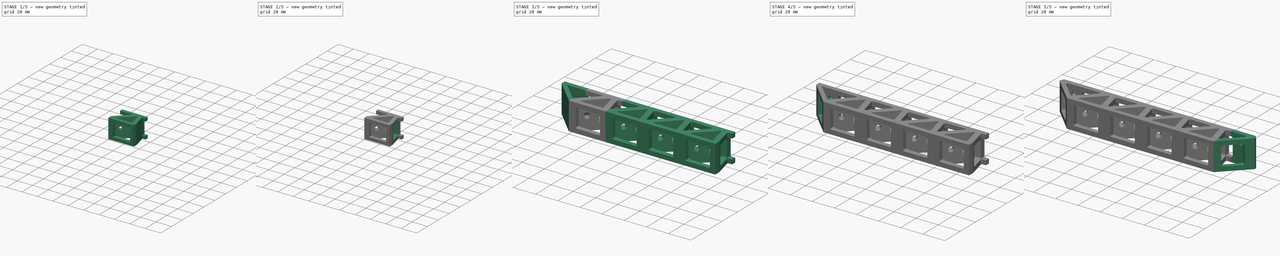
[diagram: build sequence overview — one tinted view per stage of 5, left to right]
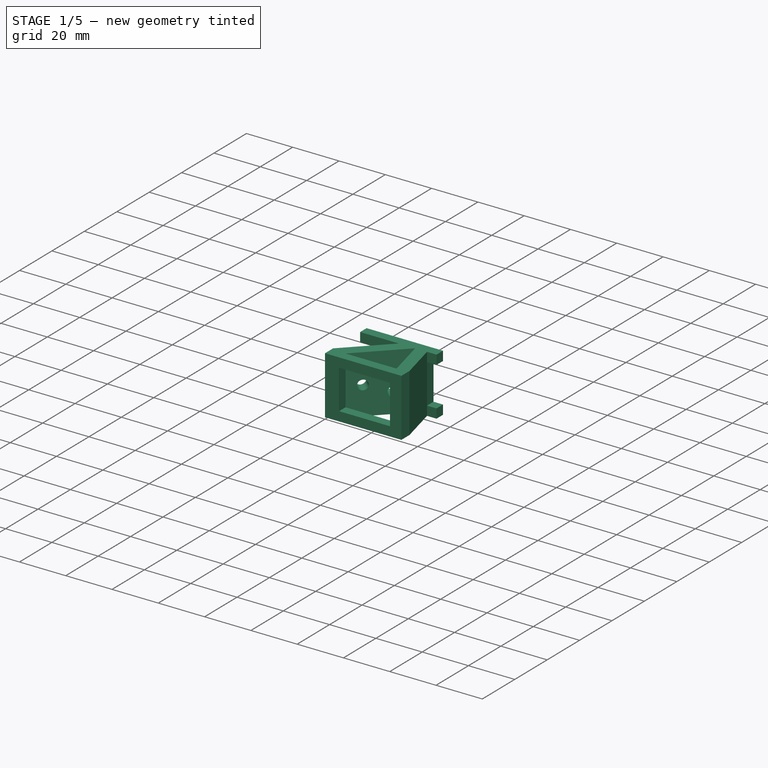
[diagram: stage 1 of 5 — iso view after this stage's code; geometry added in this stage tinted green]
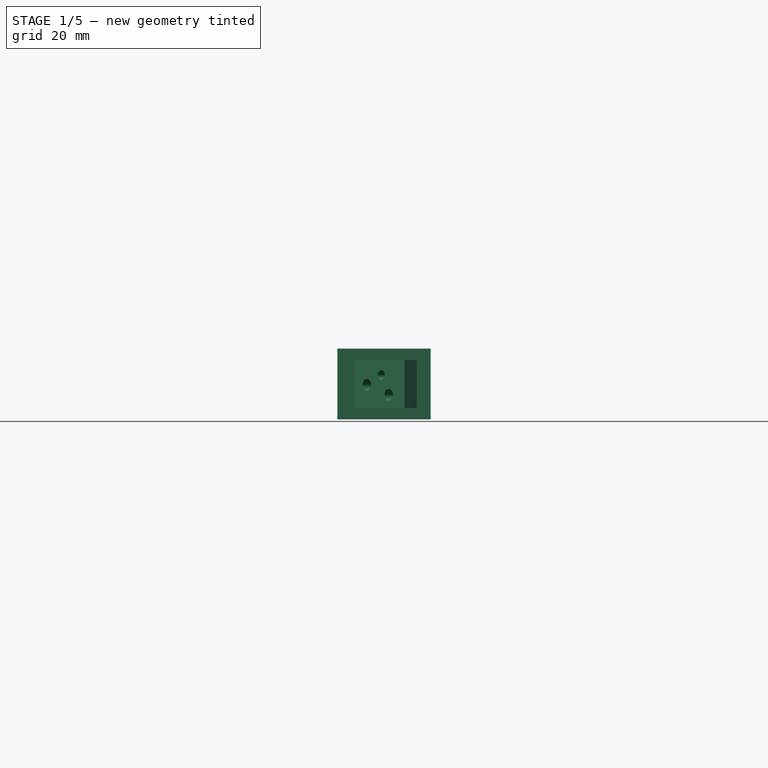
[diagram: stage 1 of 5 — front view after this stage's code; geometry added in this stage tinted green]
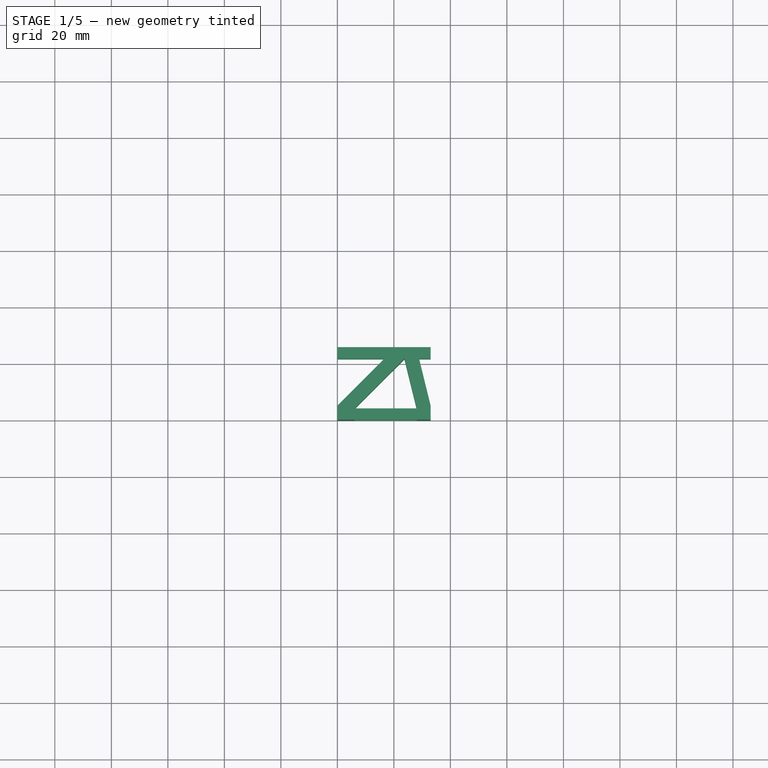
[diagram: stage 1 of 5 — top view after this stage's code; geometry added in this stage tinted green]
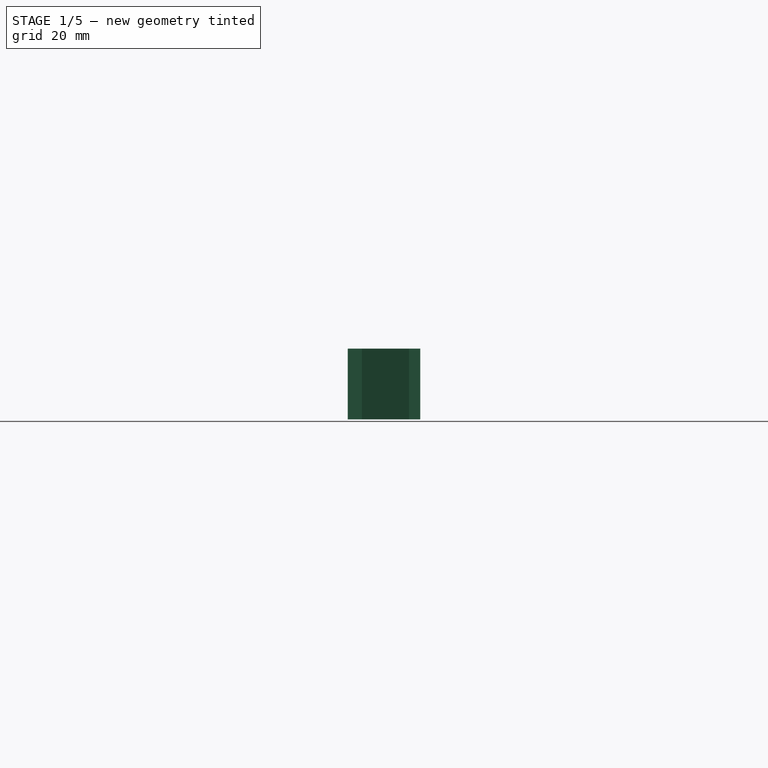
[diagram: stage 1 of 5 — right view after this stage's code; geometry added in this stage tinted green]
FCSTD DOCUMENT  (FreeCAD 0.19R)
Label: hori_stem
License: All rights reserved
LicenseURL: http://en.wikipedia.org/wiki/All_rights_reserved
objects: Sketcher::SketchObject×12, PartDesign::Pocket×6, PartDesign::Pad×5, PartDesign::Fillet×5, PartDesign::Hole×2, PartDesign::Chamfer×2, PartDesign::LinearPattern×2, PartDesign::Plane×1, PartDesign::Mirrored×1, PartDesign::Body×1
note: 57 computed .brp shape members not serialized (recipe doc carries the construction recipe); baked Part::Feature solids carry a one-line shape summary decoded from their .brp

FEATURE [Sketcher::SketchObject] Sketch  label="connector_base_sk"
  FullyConstrained = true
  MapMode = 5
  Support = -> [XY_Plane]
  sketch-geometry (13):
    g0: LineSegment StartX=0 StartY=5 StartZ=0 EndX=16.6777 EndY=21.6777 EndZ=0
    g1: LineSegment StartX=28.8978 StartY=21.6777 StartZ=0 EndX=33 EndY=5 EndZ=0
    g2: LineSegment StartX=6.07107 StartY=4 StartZ=0 EndX=23.7487 EndY=21.6777 EndZ=0
    g3: LineSegment StartX=23.7487 StartY=21.6777 StartZ=0 EndX=28.0969 EndY=4 EndZ=0
    g4: LineSegment StartX=33 StartY=0 StartZ=0 EndX=33 EndY=5 EndZ=0
    g5: LineSegment StartX=0 StartY=5 StartZ=0 EndX=0 EndY=0 EndZ=0
    g6: LineSegment StartX=6.07107 StartY=4 StartZ=0 EndX=28.0969 EndY=4 EndZ=0
    g7: LineSegment StartX=33 StartY=0 StartZ=0 EndX=0 EndY=0 EndZ=0
    g8: LineSegment StartX=0 StartY=25.6777 StartZ=0 EndX=33 EndY=25.6777 EndZ=0
    g9: LineSegment StartX=33 StartY=25.6777 StartZ=0 EndX=33 EndY=21.6777 EndZ=0
    g10: LineSegment StartX=33 StartY=21.6777 StartZ=0 EndX=28.8978 EndY=21.6777 EndZ=0
    g11: LineSegment StartX=0 StartY=21.6777 StartZ=0 EndX=0 EndY=25.6777 EndZ=0
    g12: LineSegment StartX=16.6777 StartY=21.6777 StartZ=0 EndX=0 EndY=21.6777 EndZ=0
  constraints (38):
    c: PointOnObject(g5,g-2)
    c: Coincident(g3,g2)
    c: Coincident(g5,g0)
    c: Vertical(g4)
    c: Parallel(g2,g0)
    c: Parallel(g3,g1)
    c: Vertical(g5)
    c: PointOnObject(g4,g-1)
    c: PointOnObject(g5,g-1)
    c: Coincident(g4,g1)
    c: Angle(g-1,g2) = 0.785398
    c: DistanceX(g5,g4) = 33
    c: Horizontal(g1,g0)
    c: Horizontal(g6)
    c: Coincident(g7,g4)
    c: Coincident(g7,g5)
    c: Distance(g6,g7) = 4
    c: Coincident(g3,g6)
    c: Coincident(g2,g6)
    c: Distance(g2,g0) = 5
    c: Distance(g3,g1) = 5
    c: Distance(g5) = 5
    c: Coincident(g8,g9)
    c: Coincident(g9,g10)
    c: Coincident(g12,g11)
    c: Coincident(g11,g8)
    c: Horizontal(g8)
    c: Horizontal(g10)
    c: Vertical(g9)
    c: Vertical(g11)
    c: PointOnObject(g8,g-2)
    c: Distance(g11) = 4
    c: Vertical(g9,g1)
    c: Coincident(g10,g1)
    c: Coincident(g12,g0)
    c: Tangent(g10,g12)
    c: Distance(g2) = 25
    c: Horizontal(g2,g11)
FEATURE [PartDesign::Pad] Pad  label="connector_base"
  Direction = (1,1,1)
  Length = 25
  Length2 = 17
  Midplane = true
  Profile = -> Sketch
  Type = 0
FEATURE [Sketcher::SketchObject] Sketch007  label="back_stiffener_sk"
  ExternalGeometry = -> [Pad]
  FullyConstrained = true
  MapMode = 5
  Placement = pos=(0,4,0) rot=(0,0.707107,0.707107;3.14159rad)
  Support = -> [Pad]
  sketch-geometry (4):
    g0: LineSegment StartX=-6.07107 StartY=8.5 StartZ=0 EndX=-28.0969 EndY=8.5 EndZ=0
    g1: LineSegment StartX=-28.0969 StartY=8.5 StartZ=0 EndX=-28.0969 EndY=-8.5 EndZ=0
    g2: LineSegment StartX=-28.0969 StartY=-8.5 StartZ=0 EndX=-6.07107 EndY=-8.5 EndZ=0
    g3: LineSegment StartX=-6.07107 StartY=-8.5 StartZ=0 EndX=-6.07107 EndY=8.5 EndZ=0
  constraints (12):
    c: Coincident(g0,g1)
    c: Coincident(g1,g2)
    c: Coincident(g2,g3)
    c: Coincident(g3,g0)
    c: Horizontal(g0)
    c: Horizontal(g2)
    c: Vertical(g1)
    c: Vertical(g3)
    c: PointOnObject(g0,g-4)
    c: PointOnObject(g1,g-3)
    c: Distance(g-3,g2) = 4
    c: Distance(g-4,g0) = 4
FEATURE [PartDesign::Pocket] Pocket002  label="back_stiffener"
  BaseFeature = -> Pad
  Length = 5
  Length2 = 100
  Profile = -> Sketch007
  Type = 2
FEATURE [Sketcher::SketchObject] Sketch008  label="front_stiffener_sk"
  ExternalGeometry = -> [Pocket002]
  FullyConstrained = true
  MapMode = 5
  Placement = pos=(0,21.6777,0) rot=(1,0,0;1.5708rad)
  Support = -> [Pocket002]
  sketch-geometry (8):
    g0: LineSegment StartX=0 StartY=8.5 StartZ=0 EndX=16.6777 EndY=8.5 EndZ=0
    g1: LineSegment StartX=16.6777 StartY=8.5 StartZ=0 EndX=16.6777 EndY=-8.5 EndZ=0
    g2: LineSegment StartX=16.6777 StartY=-8.5 StartZ=0 EndX=0 EndY=-8.5 EndZ=0
    g3: LineSegment StartX=0 StartY=-8.5 StartZ=0 EndX=0 EndY=8.5 EndZ=0
    g4: LineSegment StartX=28.8978 StartY=-8.5 StartZ=0 EndX=33 EndY=-8.5 EndZ=0
    g5: LineSegment StartX=33 StartY=-8.5 StartZ=0 EndX=33 EndY=8.5 EndZ=0
    g6: LineSegment StartX=33 StartY=8.5 StartZ=0 EndX=28.8978 EndY=8.5 EndZ=0
    g7: LineSegment StartX=28.8978 StartY=8.5 StartZ=0 EndX=28.8978 EndY=-8.5 EndZ=0
  constraints (24):
    c: Coincident(g0,g1)
    c: Coincident(g1,g2)
    c: Coincident(g2,g3)
    c: Coincident(g3,g0)
    c: Horizontal(g0)
    c: Horizontal(g2)
    c: Vertical(g1)
    c: Vertical(g3)
    c: PointOnObject(g0,g-6)
    c: PointOnObject(g1,g-5)
    c: Coincident(g4,g5)
    c: Coincident(g5,g6)
    c: Coincident(g6,g7)
    c: Coincident(g7,g4)
    c: Horizontal(g4)
    c: Horizontal(g6)
    c: Vertical(g5)
    c: Vertical(g7)
    c: PointOnObject(g4,g-3)
    c: PointOnObject(g5,g-4)
    c: Distance(g-4,g6) = 4
    c: Distance(g-6,g2) = 4
    c: Horizontal(g1,g4)
    c: Horizontal(g0,g6)
FEATURE [PartDesign::Pocket] Pocket003  label="front_stiffener"
  BaseFeature = -> Pocket002
  Length = 5
  Length2 = 100
  Profile = -> Sketch008
  Type = 2
FEATURE [Sketcher::SketchObject] Sketch001  label="M3_hole_sk"
  ExternalGeometry = -> [Pad]
  FullyConstrained = true
  MapMode = 5
  Placement = pos=(-2.5,2.5,0) rot=(-0.281085,0.678598,0.678598;3.68962rad)
  Support = -> [Pocket003]
  sketch-geometry (1):
    g0: Circle CenterX=-20.5355 CenterY=3.2 CenterZ=0 NormalX=0 NormalY=0 NormalZ=1 AngleXU=0 Radius=1
  constraints (3):
    c: Radius(g0) = 1
    c: Distance(g0,g-3) = 17
    c: Distance(g0,g-4) = 9.3
FEATURE [PartDesign::Hole] Hole  label="M3_hole"
  BaseFeature = -> Pocket003
  Depth = 7
  DepthType = 0
  Diameter = 3.4
  DrillForDepth = false
  DrillPoint = 1
  DrillPointAngle = 118
  HoleCutCountersinkAngle = 90
  HoleCutCustomValues = false
  HoleCutDepth = 0
  HoleCutDiameter = 6.1
  HoleCutType = 0
  ModelActualThread = false
  Profile = -> Sketch001
  Tapered = false
  TaperedAngle = 90
  ThreadAngle = 0
  ThreadClass = 0
  ThreadCutOffInner = 0
  ThreadCutOffOuter = 0
  ThreadDirection = 0
  ThreadFit = 0
  ThreadPitch = 0
  ThreadSize = 9
  ThreadType = 1
  Threaded = false
FEATURE [Sketcher::SketchObject] Sketch002  label="dual_dowel_hole_sk"
  ExternalGeometry = -> [Hole]
  FullyConstrained = true
  MapMode = 5
  Placement = pos=(-2.5,2.5,0) rot=(-0.281085,0.678598,0.678598;3.68962rad)
  Support = -> [Hole]
  sketch-geometry (2):
    g0: Circle CenterX=-24.2355 CenterY=-3.8 CenterZ=0 NormalX=0 NormalY=0 NormalZ=1 AngleXU=0 Radius=2.1
    g1: Circle CenterX=-13.3355 CenterY=-0.3 CenterZ=0 NormalX=0 NormalY=0 NormalZ=1 AngleXU=0 Radius=2.1
  constraints (6):
    c: Radius(g0) = 2.1
    c: Equal(g1,g0)
    c: DistanceY(g0,g-3) = 7
    c: DistanceX(g0,g-3) = 3.7
    c: DistanceY(g1,g-3) = 3.5
    c: DistanceX(g-3,g1) = 7.2
FEATURE [PartDesign::Pocket] Pocket  label="dual_dowel_hole"
  BaseFeature = -> Hole
  Length = 7
  Length2 = 100
  Profile = -> Sketch002
  Type = 2
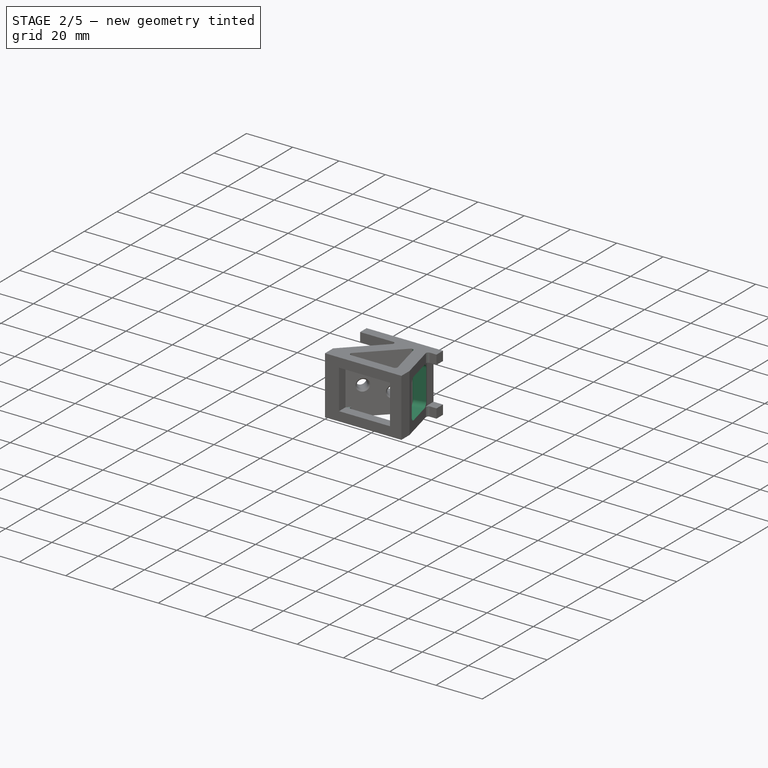
[diagram: stage 2 of 5 — iso view after this stage's code; geometry added in this stage tinted green]
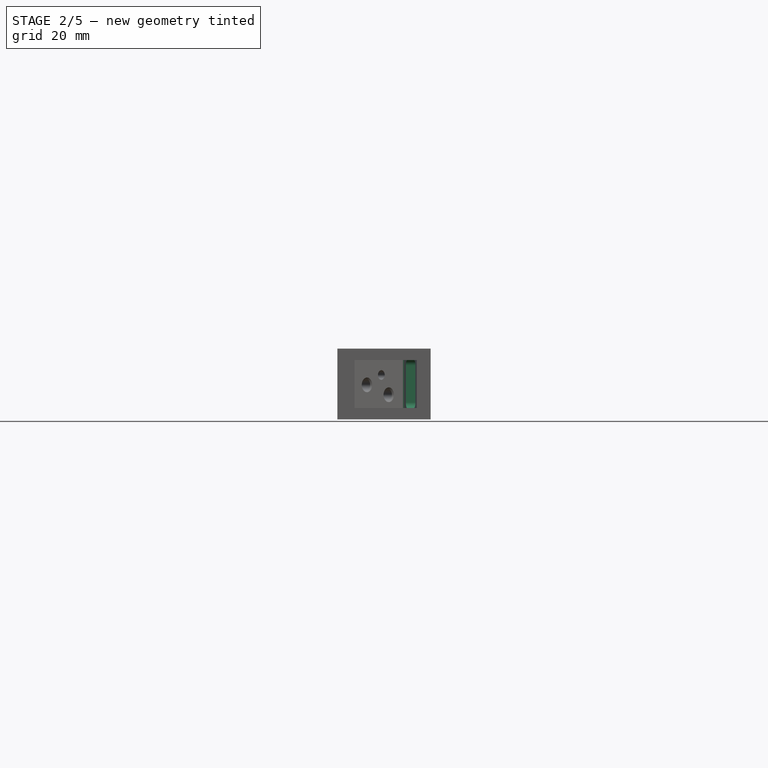
[diagram: stage 2 of 5 — front view after this stage's code; geometry added in this stage tinted green]
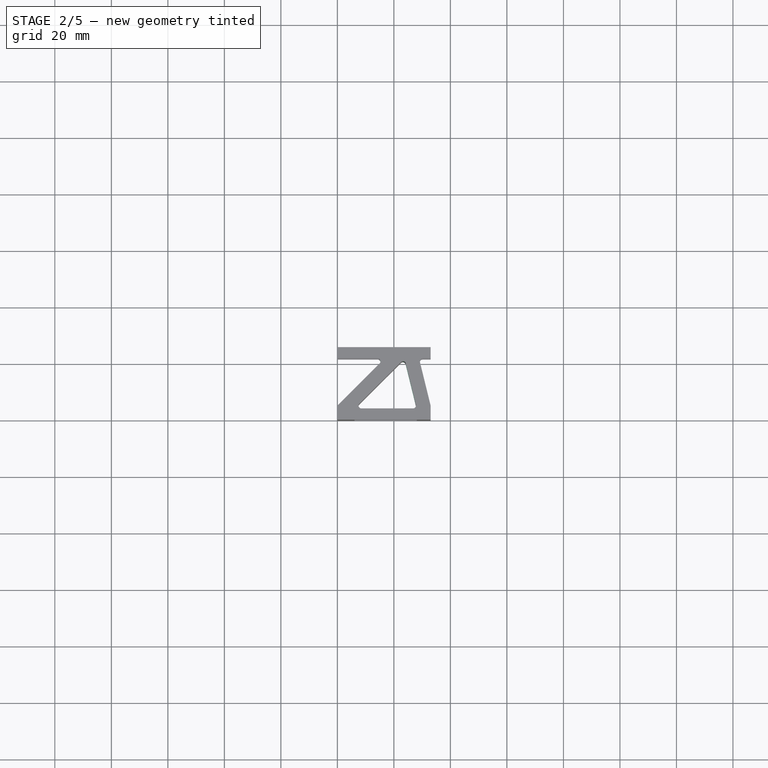
[diagram: stage 2 of 5 — top view after this stage's code; geometry added in this stage tinted green]
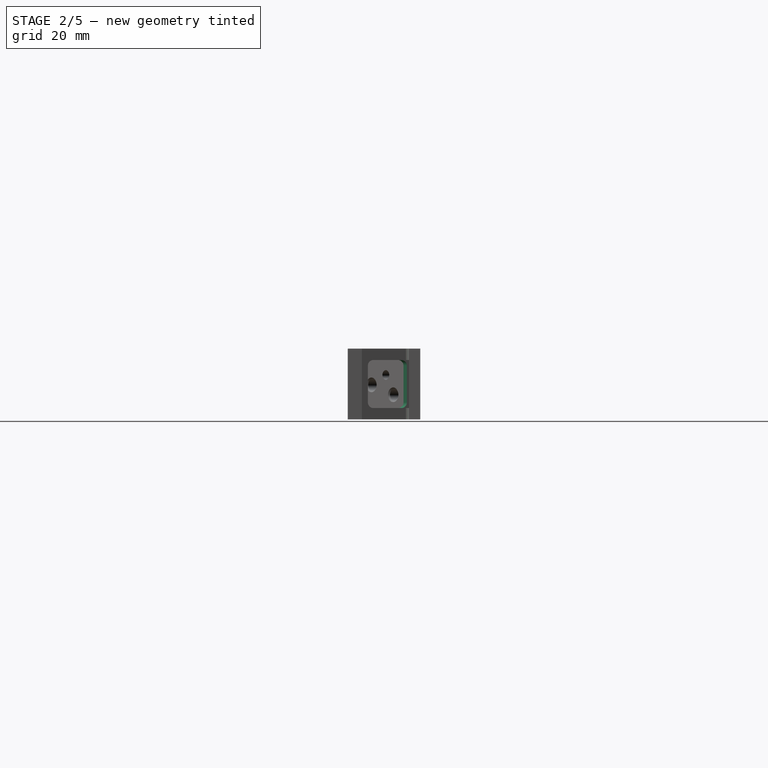
[diagram: stage 2 of 5 — right view after this stage's code; geometry added in this stage tinted green]
FEATURE [PartDesign::Chamfer] Chamfer  label="dowel_chamfer"
  Angle = 45
  Base = -> Pocket [Edge73,Edge75]
  BaseFeature = -> Pocket
  ChamferType = 0
  FlipDirection = false
  Size = 0.5
  Size2 = 1
  SupportTransform = false
FEATURE [Sketcher::SketchObject] Sketch005  label="finger_hole_sk"
  ExternalGeometry = -> [Pocket003]
  FullyConstrained = true
  MapMode = 5
  Placement = pos=(27.4218,6.74497,0) rot=(0.66983,-0.525037,-0.525037;1.96121rad)
  Support = -> [Pocket003]
  sketch-geometry (4):
    g0: LineSegment StartX=-13.3778 StartY=8.5 StartZ=0 EndX=0.826785 EndY=8.5 EndZ=0
    g1: LineSegment StartX=0.826785 StartY=8.5 StartZ=0 EndX=0.826785 EndY=-8.5 EndZ=0
    g2: LineSegment StartX=0.826785 StartY=-8.5 StartZ=0 EndX=-13.3778 EndY=-8.5 EndZ=0
    g3: LineSegment StartX=-13.3778 StartY=-8.5 StartZ=0 EndX=-13.3778 EndY=8.5 EndZ=0
  constraints (12):
    c: Coincident(g0,g1)
    c: Coincident(g1,g2)
    c: Coincident(g2,g3)
    c: Coincident(g3,g0)
    c: Horizontal(g0)
    c: Horizontal(g2)
    c: Vertical(g1)
    c: Vertical(g3)
    c: DistanceY(g0,g-3) = 4
    c: DistanceX(g-3,g0) = 2
    c: DistanceY(g-4,g1) = 4
    c: DistanceX(g1,g-4) = 2
FEATURE [PartDesign::Pocket] Pocket001  label="finger_hole"
  BaseFeature = -> Chamfer
  Length = 0
  Length2 = 100
  Profile = -> Sketch005
  Type = 2
FEATURE [PartDesign::Fillet] Fillet  label="finger_hole_fillet"
  Base = -> Pocket001 [Edge93,Edge92,Edge90,Edge91]
  BaseFeature = -> Pocket001
  Radius = 2
  SupportTransform = false
FEATURE [PartDesign::Fillet] Fillet001  label="frame_fillet"
  Base = -> Fillet [Edge85,Edge84,Edge66,Edge69,Edge32,Edge35,Edge9,Edge13,Edge12]
  BaseFeature = -> Fillet
  Radius = 1
  SupportTransform = false
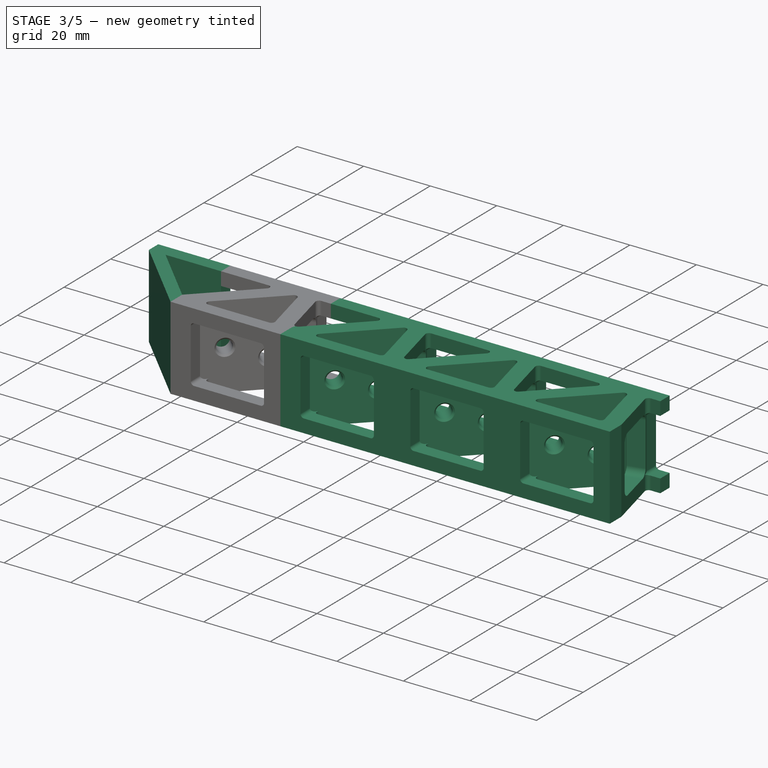
[diagram: stage 3 of 5 — iso view after this stage's code; geometry added in this stage tinted green]
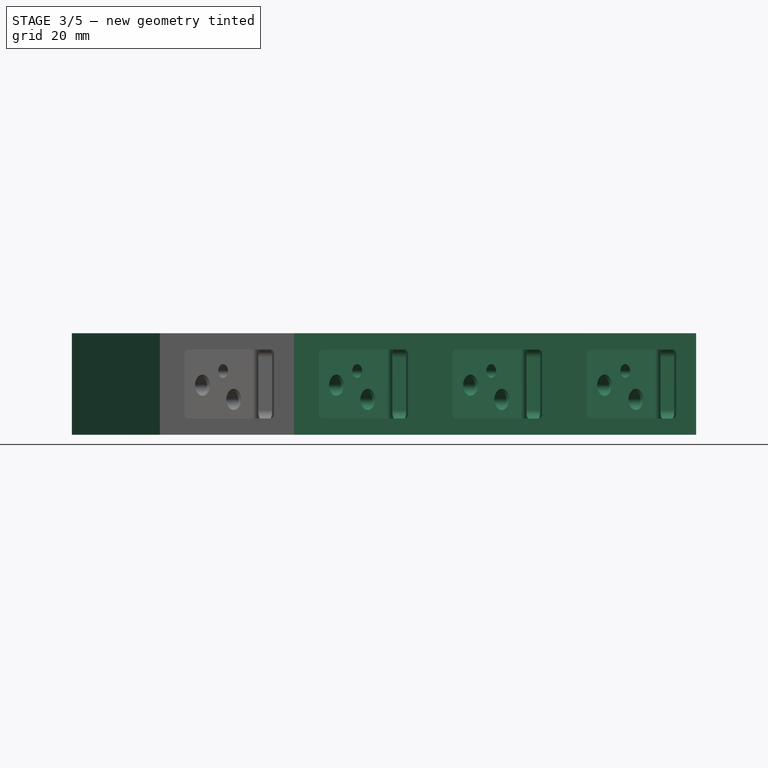
[diagram: stage 3 of 5 — front view after this stage's code; geometry added in this stage tinted green]
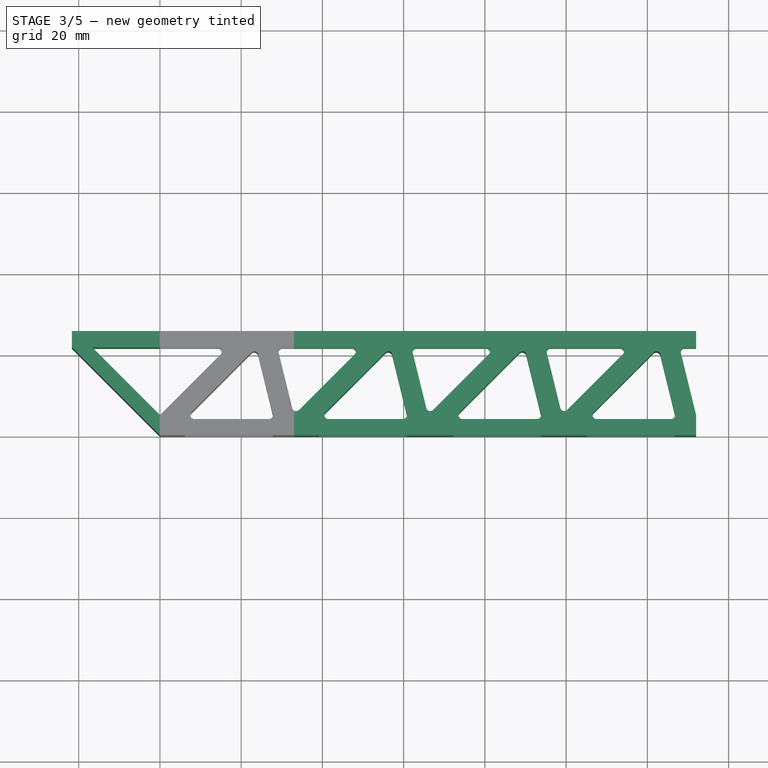
[diagram: stage 3 of 5 — top view after this stage's code; geometry added in this stage tinted green]
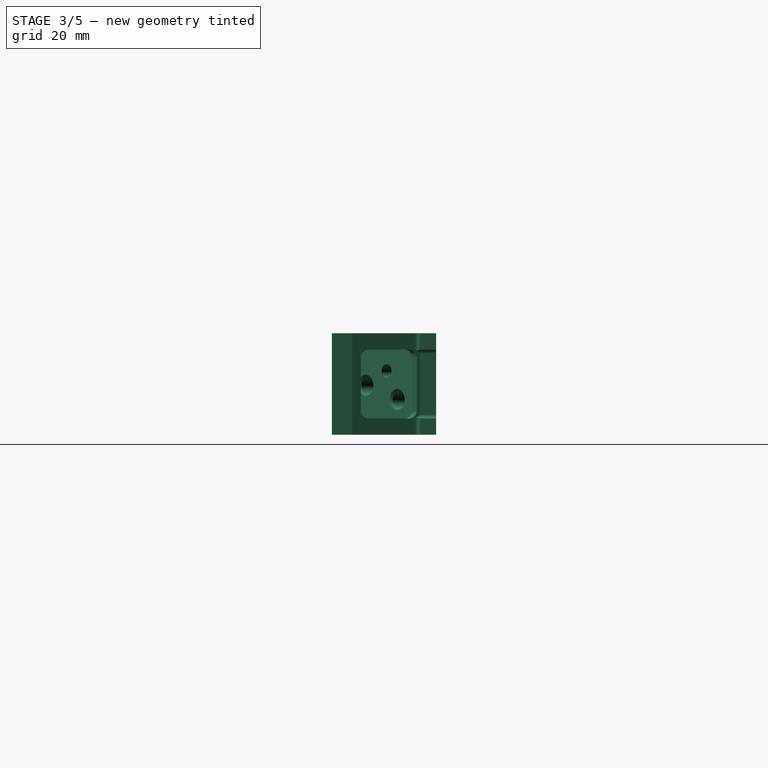
[diagram: stage 3 of 5 — right view after this stage's code; geometry added in this stage tinted green]
FEATURE [PartDesign::Fillet] Fillet002  label="frame_fillet2"
  Base = -> Fillet001 [Edge62,Edge57,Edge58,Edge67,Edge148,Edge149,Edge141,Edge142]
  BaseFeature = -> Fillet001
  Radius = 1
  SupportTransform = false
FEATURE [PartDesign::LinearPattern] LinearPattern  label="quad_connector"
  BaseFeature = -> Fillet002
  Direction = -> X_Axis
  Length = 99
  Occurrences = 4
  Originals = -> [Pad,Pocket002,Pocket003,Hole,Pocket,Chamfer,Pocket001,Fillet,Fillet001,Fillet002]
FEATURE [Sketcher::SketchObject] Sketch009  label="additive_fillet_sk"
  ExternalGeometry = -> [LinearPattern]
  FullyConstrained = true
  MapMode = 5
  Placement = pos=(0,0,12.5) rot=(0,0,1;0rad)
  Support = -> [LinearPattern]
  sketch-geometry (3):
    g0: LineSegment StartX=33 StartY=5 StartZ=0 EndX=34.2544 EndY=6.25443 EndZ=0
    g1: LineSegment StartX=33 StartY=5 StartZ=0 EndX=32.5763 EndY=6.72269 EndZ=0
    g2: ArcOfCircle CenterX=33.5473 CenterY=6.96154 CenterZ=0 NormalX=0 NormalY=0 NormalZ=1 AngleXU=0 Radius=1 StartAngle=3.38278 EndAngle=5.49779
  constraints (7):
    c: Coincident(g0,g-5)
    c: PointOnObject(g0,g-5)
    c: Coincident(g1,g0)
    c: PointOnObject(g1,g-4)
    c: Tangent(g2,g1) = 1.5708
    c: Tangent(g2,g0) = -1.5708
    c: Equal(g2,g-3)
FEATURE [PartDesign::Pad] Pad001  label="additive_fillet"
  BaseFeature = -> LinearPattern
  Direction = (1,1,1)
  Length = 10
  Length2 = 100
  Profile = -> Sketch009
  Reversed = true
  Type = 3
  UpToFace = -> LinearPattern [Face4]
FEATURE [PartDesign::LinearPattern] LinearPattern001  label="triple_additive_fillet"
  BaseFeature = -> Pad001
  Direction = -> X_Axis
  Length = 66
  Occurrences = 3
  Originals = -> [Pad001]
FEATURE [Sketcher::SketchObject] Sketch010  label="rack_connectorsk"
  ExternalGeometry = -> [LinearPattern001]
  FullyConstrained = true
  MapMode = 5
  Placement = pos=(0,0,12.5) rot=(0,0,1;0rad)
  Support = -> [LinearPattern001]
  sketch-geometry (7):
    g0: LineSegment StartX=0 StartY=25.6777 StartZ=0 EndX=-21.6777 EndY=25.6777 EndZ=0
    g1: LineSegment StartX=-21.6777 StartY=25.6777 StartZ=0 EndX=-21.6777 EndY=21.6777 EndZ=0
    g2: LineSegment StartX=-21.6777 StartY=21.6777 StartZ=0 EndX=0 EndY=0 EndZ=0
    g3: LineSegment StartX=0 StartY=0 StartZ=0 EndX=0 EndY=5 EndZ=0
    g4: LineSegment StartX=0 StartY=5 StartZ=0 EndX=-16.6777 EndY=21.6777 EndZ=0
    g5: LineSegment StartX=-16.6777 StartY=21.6777 StartZ=0 EndX=0 EndY=21.6777 EndZ=0
    g6: LineSegment StartX=0 StartY=25.6777 StartZ=0 EndX=0 EndY=21.6777 EndZ=0
  constraints (17):
    c: Coincident(g-3,g0)
    c: Horizontal(g0)
    c: Coincident(g0,g1)
    c: Vertical(g1)
    c: Coincident(g1,g2)
    c: Coincident(g2,g-1)
    c: Coincident(g2,g3)
    c: Coincident(g3,g-4)
    c: Coincident(g3,g4)
    c: Coincident(g4,g5)
    c: Coincident(g5,g-3)
    c: Horizontal(g5)
    c: Parallel(g4,g2)
    c: Horizontal(g1,g4)
    c: Angle(g4,g5) = 0.785398
    c: Coincident(g6,g0)
    c: Coincident(g6,g5)
FEATURE [PartDesign::Pad] Pad002  label="rack_connector"
  BaseFeature = -> LinearPattern001
  Direction = (1,1,1)
  Length = 10
  Length2 = 100
  Profile = -> Sketch010
  Reversed = true
  Type = 3
  UpToFace = -> LinearPattern001 [Face4]
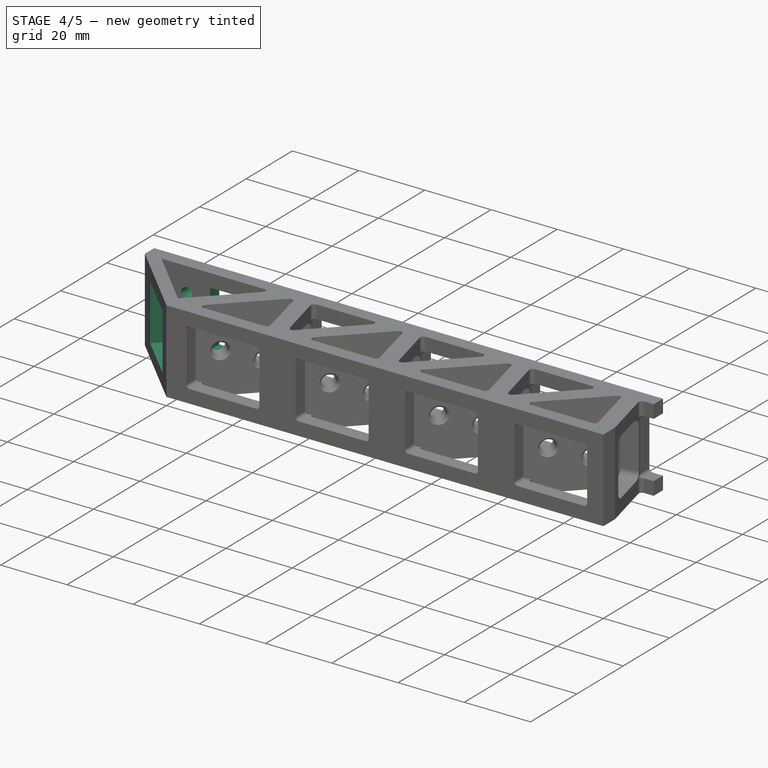
[diagram: stage 4 of 5 — iso view after this stage's code; geometry added in this stage tinted green]
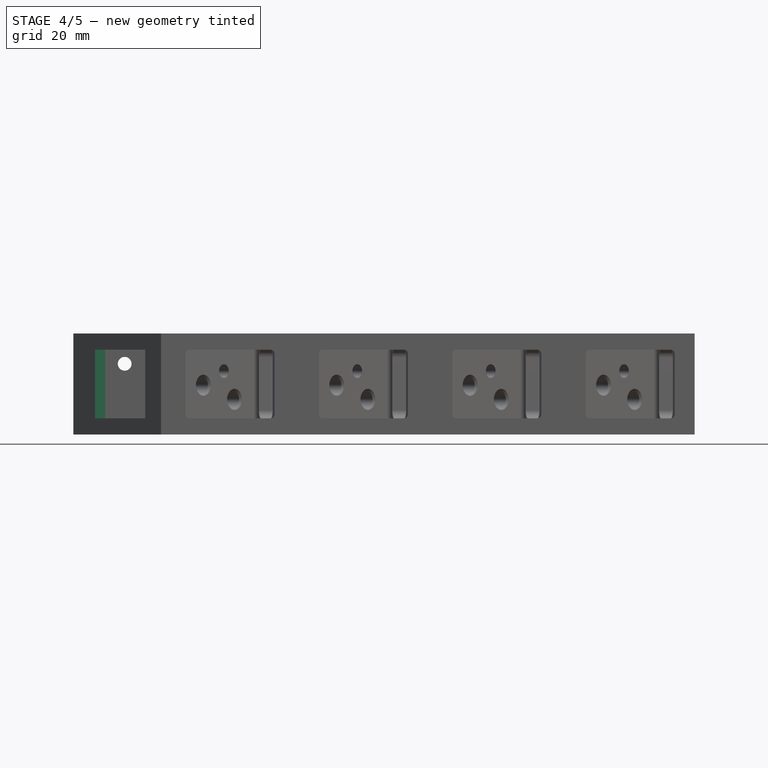
[diagram: stage 4 of 5 — front view after this stage's code; geometry added in this stage tinted green]
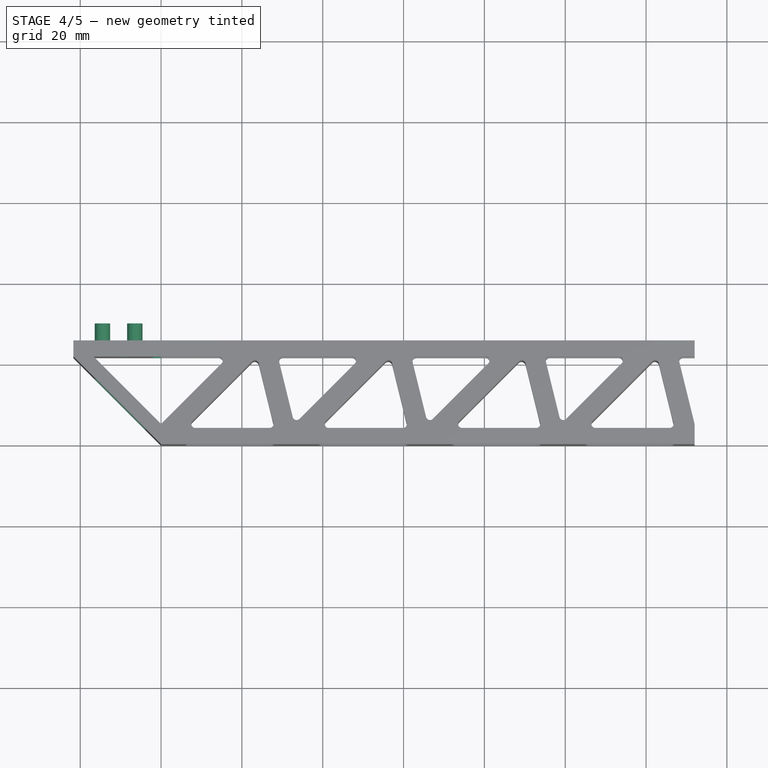
[diagram: stage 4 of 5 — top view after this stage's code; geometry added in this stage tinted green]
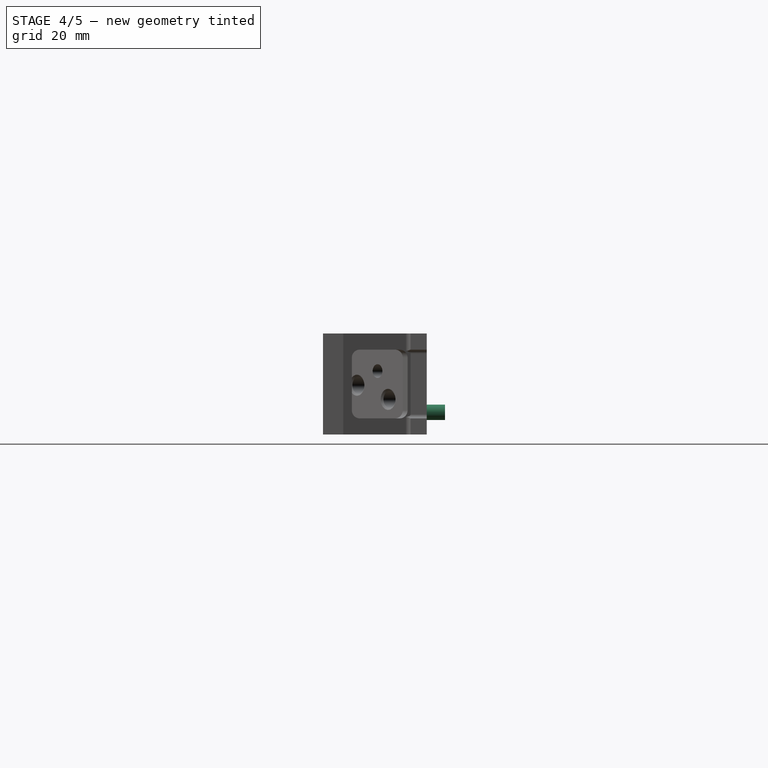
[diagram: stage 4 of 5 — right view after this stage's code; geometry added in this stage tinted green]
FEATURE [Sketcher::SketchObject] Sketch011  label="lightening_hole_sk"
  ExternalGeometry = -> [Pad002]
  FullyConstrained = true
  MapMode = 5
  Placement = pos=(2.5,2.5,0) rot=(0.281085,0.678598,0.678598;2.59356rad)
  Support = -> [Pad002]
  sketch-geometry (4):
    g0: LineSegment StartX=5.53553 StartY=8.5 StartZ=0 EndX=23.1213 EndY=8.5 EndZ=0
    g1: LineSegment StartX=23.1213 StartY=8.5 StartZ=0 EndX=23.1213 EndY=-8.5 EndZ=0
    g2: LineSegment StartX=23.1213 StartY=-8.5 StartZ=0 EndX=5.53553 EndY=-8.5 EndZ=0
    g3: LineSegment StartX=5.53553 StartY=-8.5 StartZ=0 EndX=5.53553 EndY=8.5 EndZ=0
  constraints (12):
    c: Coincident(g0,g1)
    c: Coincident(g1,g2)
    c: Coincident(g2,g3)
    c: Coincident(g3,g0)
    c: Horizontal(g0)
    c: Horizontal(g2)
    c: Vertical(g1)
    c: Vertical(g3)
    c: DistanceY(g0,g-3) = 4
    c: DistanceX(g-3,g0) = 2
    c: DistanceX(g1,g-4) = 4
    c: DistanceY(g-4,g1) = 4
FEATURE [PartDesign::Pocket] Pocket004  label="lightening_hole"
  BaseFeature = -> Pad002
  Length = 5
  Length2 = 100
  Profile = -> Sketch011
  Type = 2
FEATURE [PartDesign::Pocket] Pocket005  label="hole_extent"
  BaseFeature = -> Pocket004
  Length = 2
  Length2 = 100
  Profile = -> Pocket004 [Face106]
  Type = 0
FEATURE [PartDesign::Plane] DatumPlane  label="mid_plane"
  Length = 65.6827
  MapMode = 13
  Placement = pos=(66,8.55922,-4.16667) rot=(0.57735,-0.57735,-0.57735;2.0944rad)
  ResizeMode = 0
  Support = -> [Pocket005]
  Width = 60.505
FEATURE [Sketcher::SketchObject] Sketch012  label="end_M3_hole_sk"
  FullyConstrained = true
  MapMode = 5
  Placement = pos=(0,25.6777,0) rot=(0,0.707107,0.707107;3.14159rad)
  Support = -> [Pocket005]
  sketch-geometry (1):
    g0: Circle CenterX=9 CenterY=5 CenterZ=0 NormalX=0 NormalY=0 NormalZ=1 AngleXU=0 Radius=1
  constraints (3):
    c: DistanceY(g0) = 5
    c: DistanceX(g0) = 9
    c: Radius(g0) = 1
FEATURE [PartDesign::Hole] Hole001  label="end_M3_hole"
  BaseFeature = -> Pocket005
  Depth = 7
  DepthType = 1
  Diameter = 3.4
  DrillForDepth = false
  DrillPoint = 1
  DrillPointAngle = 118
  HoleCutCountersinkAngle = 90
  HoleCutCustomValues = false
  HoleCutDepth = 0
  HoleCutDiameter = 6.1
  HoleCutType = 0
  ModelActualThread = false
  Profile = -> Sketch012
  Tapered = false
  TaperedAngle = 90
  ThreadAngle = 0
  ThreadClass = 0
  ThreadCutOffInner = 0
  ThreadCutOffOuter = 0
  ThreadDirection = 0
  ThreadFit = 0
  ThreadPitch = 0
  ThreadSize = 9
  ThreadType = 1
  Threaded = false
FEATURE [Sketcher::SketchObject] Sketch013  label="end_dowel_pin_sk"
  FullyConstrained = true
  MapMode = 5
  Placement = pos=(0,25.6777,0) rot=(0,0.707107,0.707107;3.14159rad)
  Support = -> [Hole001]
  sketch-geometry (2):
    g0: Circle CenterX=6.5 CenterY=-7 CenterZ=0 NormalX=0 NormalY=0 NormalZ=1 AngleXU=0 Radius=1.9
    g1: Circle CenterX=14.5 CenterY=-7 CenterZ=0 NormalX=0 NormalY=0 NormalZ=1 AngleXU=0 Radius=1.9
  constraints (6):
    c: Horizontal(g0,g1)
    c: Radius(g0) = 1.9
    c: Equal(g0,g1)
    c: DistanceX(g0) = 6.5
    c: DistanceX(g0,g1) = 8
    c: DistanceY(g1) = -7
FEATURE [PartDesign::Pad] Pad003  label="end_dowel_pin"
  BaseFeature = -> Hole001
  Direction = (1,1,1)
  Length = 4.5
  Length2 = 100
  Profile = -> Sketch013
  Type = 0
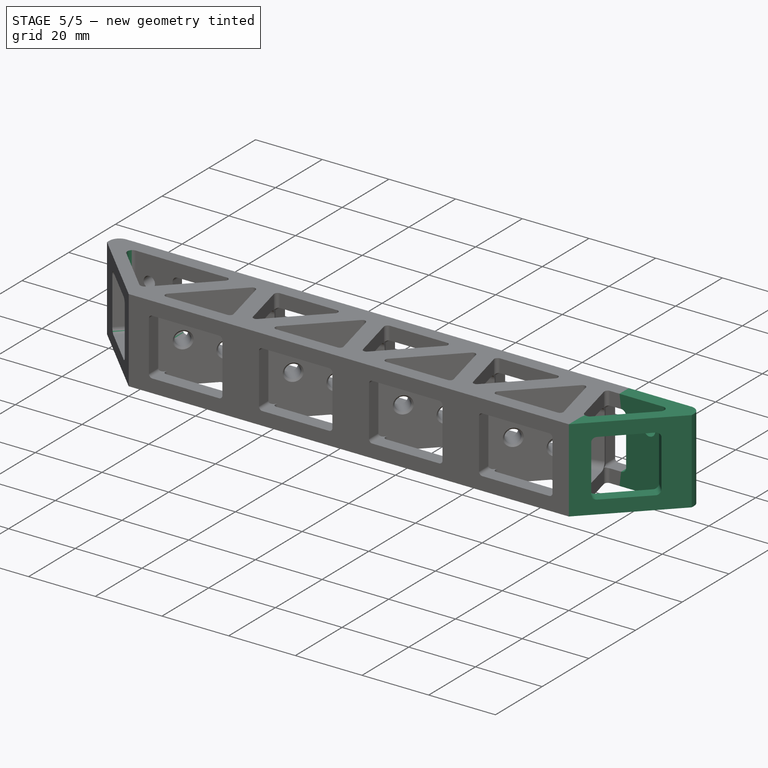
[diagram: stage 5 of 5 — iso view after this stage's code; geometry added in this stage tinted green]
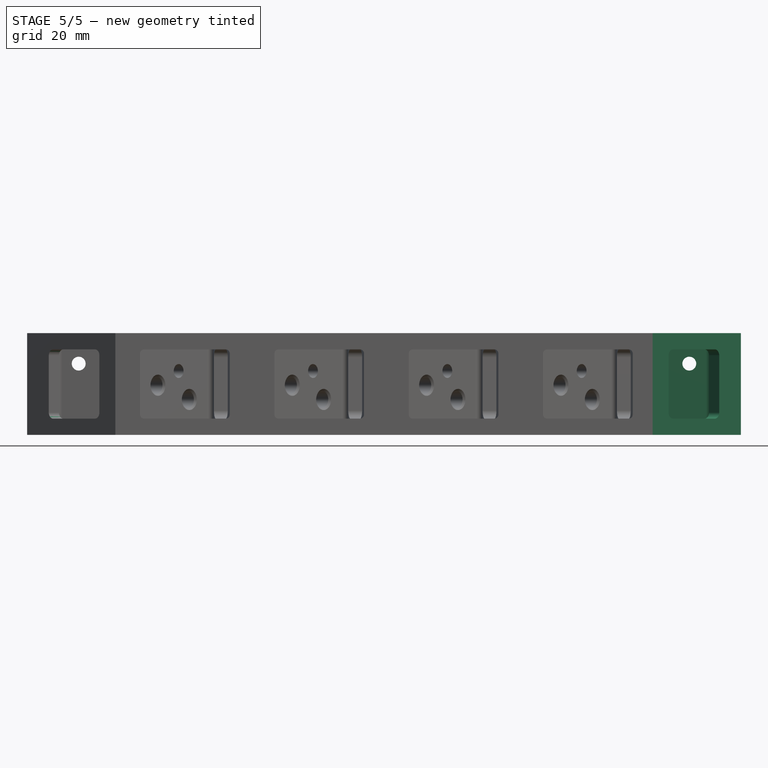
[diagram: stage 5 of 5 — front view after this stage's code; geometry added in this stage tinted green]
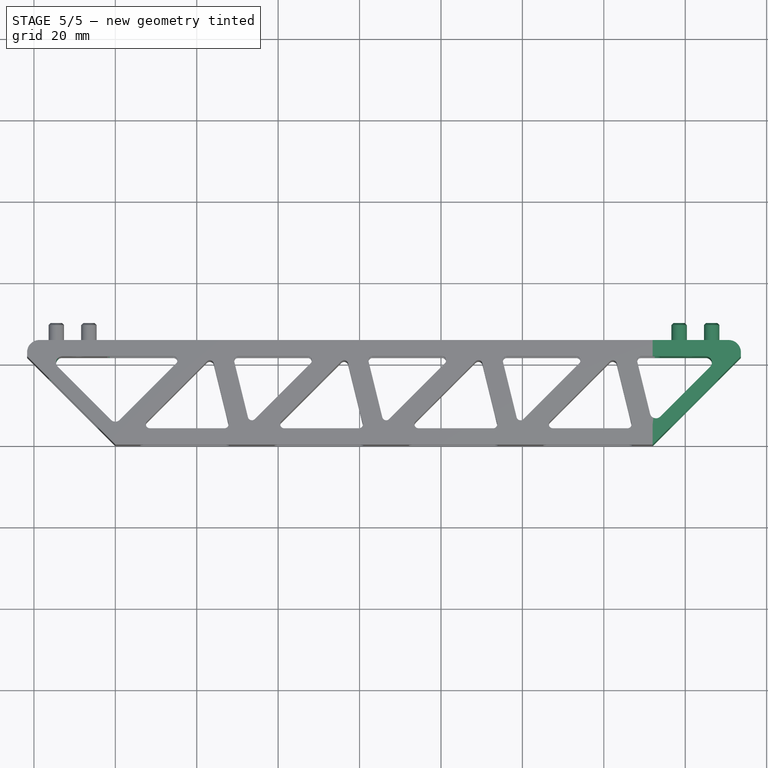
[diagram: stage 5 of 5 — top view after this stage's code; geometry added in this stage tinted green]
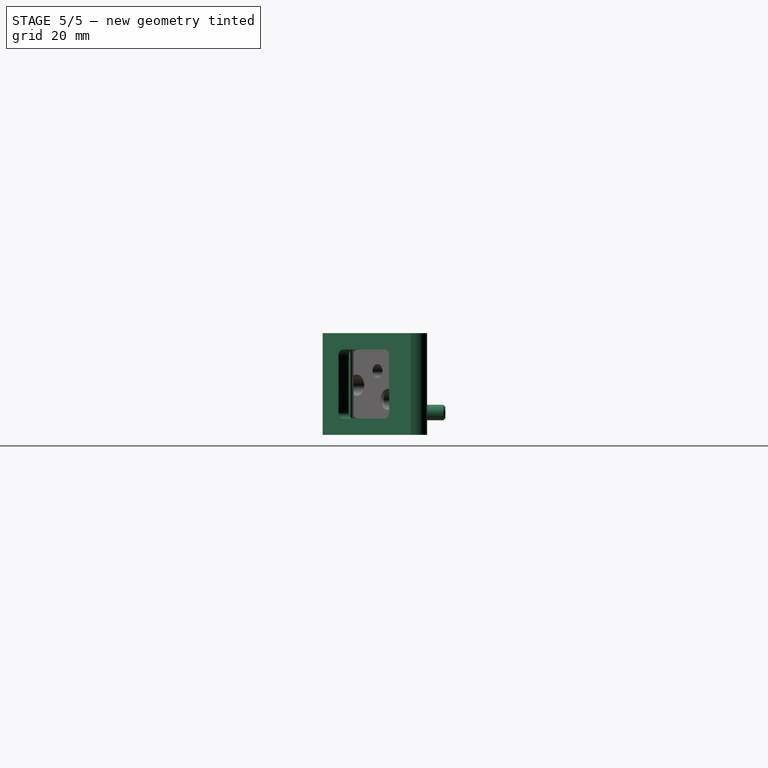
[diagram: stage 5 of 5 — right view after this stage's code; geometry added in this stage tinted green]
FEATURE [PartDesign::Chamfer] Chamfer001  label="dowel_pin_chamfer"
  Angle = 45
  Base = -> Pad003 [Edge452,Edge450]
  BaseFeature = -> Pad003
  ChamferType = 0
  FlipDirection = false
  Size = 0.5
  Size2 = 1
  SupportTransform = false
FEATURE [PartDesign::Fillet] Fillet003  label="end_wedge_fillet"
  Base = -> Chamfer001 [Edge8]
  BaseFeature = -> Chamfer001
  Radius = 3
  SupportTransform = false
FEATURE [PartDesign::Fillet] Fillet004  label="end_hole_fillet"
  Base = -> Fillet003 [Edge45,Edge43,Edge233,Edge235,Edge71,Edge234,Edge236]
  BaseFeature = -> Fillet003
  Radius = 1.5
  SupportTransform = false
FEATURE [PartDesign::Mirrored] Mirrored
  BaseFeature = -> Fillet004
  MirrorPlane = -> DatumPlane
  Originals = -> [Pad002,Pocket004,Pocket005,Hole001,Pad003,Chamfer001,Fillet003,Fillet004]
FEATURE [Sketcher::SketchObject] Sketch014  label="end_additive_fillet_sk"
  ExternalGeometry = -> [Mirrored]
  FullyConstrained = true
  MapMode = 5
  Placement = pos=(0,0,12.5) rot=(0,0,1;0rad)
  Support = -> [Mirrored]
  sketch-geometry (6):
    g0: LineSegment StartX=0 StartY=5 StartZ=0 EndX=-1.06066 EndY=6.06066 EndZ=0
    g1: LineSegment StartX=0 StartY=5 StartZ=0 EndX=1.06066 EndY=6.06066 EndZ=0
    g2: ArcOfCircle CenterX=3e-16 CenterY=7.12132 CenterZ=0 NormalX=0 NormalY=0 NormalZ=1 AngleXU=0 Radius=1.5 StartAngle=3.92699 EndAngle=5.49779
    g3: LineSegment StartX=132 StartY=5 StartZ=0 EndX=133.882 EndY=6.88165 EndZ=0
    g4: LineSegment StartX=132 StartY=5 StartZ=0 EndX=131.364 EndY=7.58403 EndZ=0
    g5: ArcOfCircle CenterX=132.821 CenterY=7.94231 CenterZ=0 NormalX=0 NormalY=0 NormalZ=1 AngleXU=0 Radius=1.5 StartAngle=3.38278 EndAngle=5.49779
  constraints (14):
    c: Coincident(g0,g-4)
    c: PointOnObject(g0,g-3)
    c: Coincident(g1,g0)
    c: PointOnObject(g1,g-4)
    c: Tangent(g2,g0) = 1.5708
    c: Tangent(g2,g1) = -1.5708
    c: Equal(g2,g-7)
    c: Coincident(g3,g-6)
    c: PointOnObject(g3,g-6)
    c: Coincident(g4,g3)
    c: PointOnObject(g4,g-5)
    c: Tangent(g5,g4) = 1.5708
    c: Tangent(g5,g3) = -1.5708
    c: Equal(g5,g-7)
FEATURE [PartDesign::Pad] Pad004  label="end_additive_fillet"
  BaseFeature = -> Mirrored
  Direction = (1,1,1)
  Length = 10
  Length2 = 100
  Profile = -> Sketch014
  Reversed = true
  Type = 3
  UpToFace = -> Mirrored [Face10]
FEATURE [PartDesign::Body] Body  label="body"
  Group = -> [Sketch,Pad,Pocket002,Pocket003,Sketch005,Sketch008,Sketch001,Hole,Sketch002,Pocket,Chamfer,Pocket001,Fillet,Sketch007,Fillet001,Fillet002,Sketch009,LinearPattern,Pad001,LinearPattern001,DatumPlane,Sketch010,Pad002,Sketch011,Pocket004,Pocket005,Sketch012,Hole001,Sketch013,Pad003,Chamfer001,Fillet003,Fillet004,Mirrored,Sketch014,Pad004]
  Origin = -> Origin
  Tip = -> Pad004
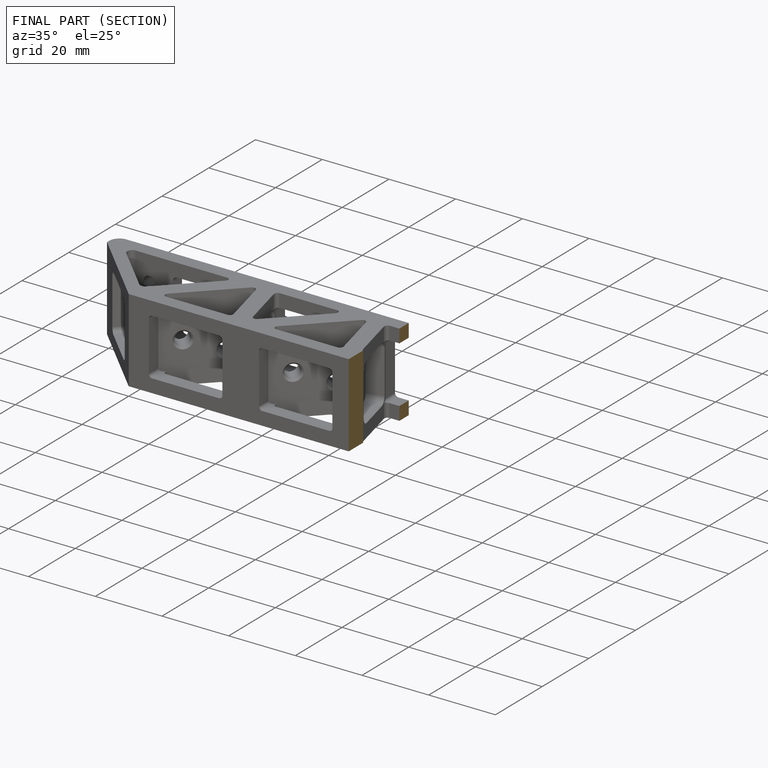
[diagram: finished part — half-section view (interior)]
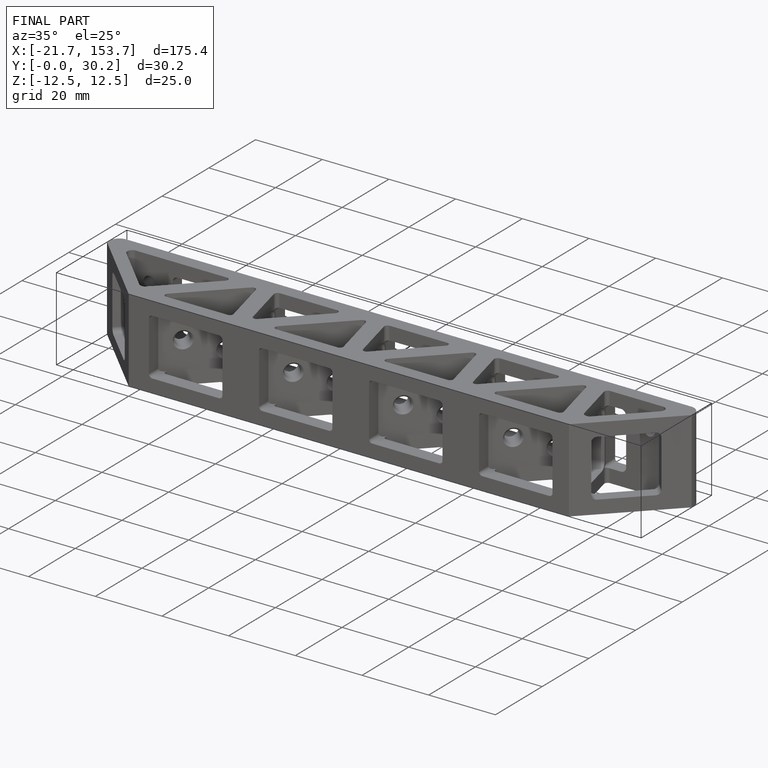
[diagram: finished part — iso view with bounding-box wireframe]
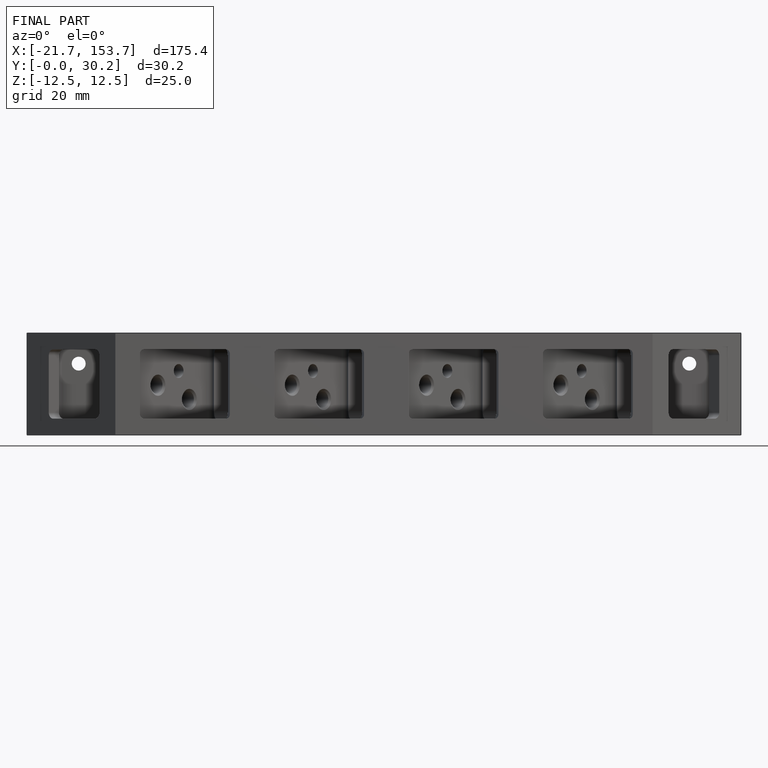
[diagram: finished part — front view with bounding-box wireframe]
